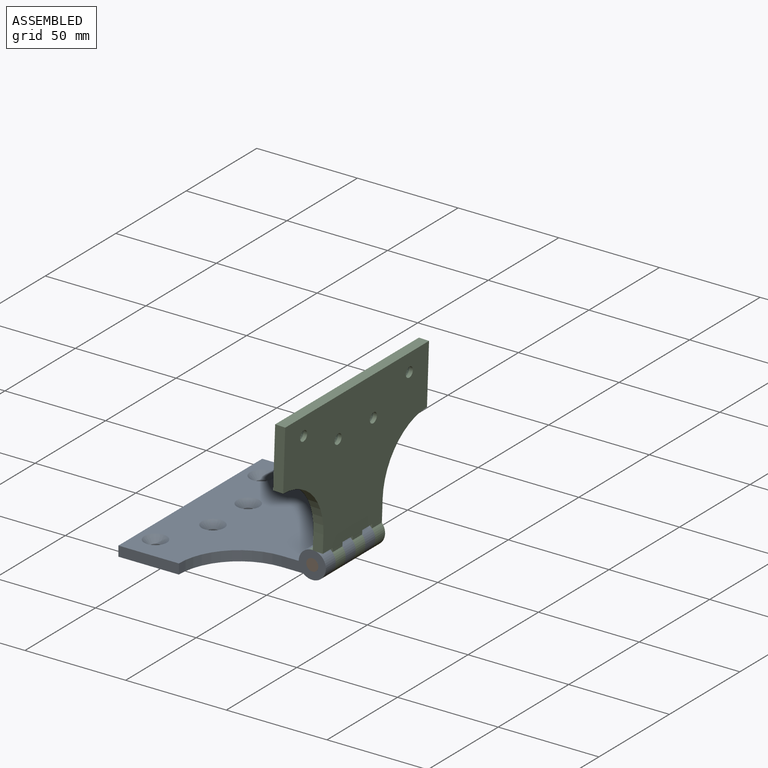
[diagram: assembled view]
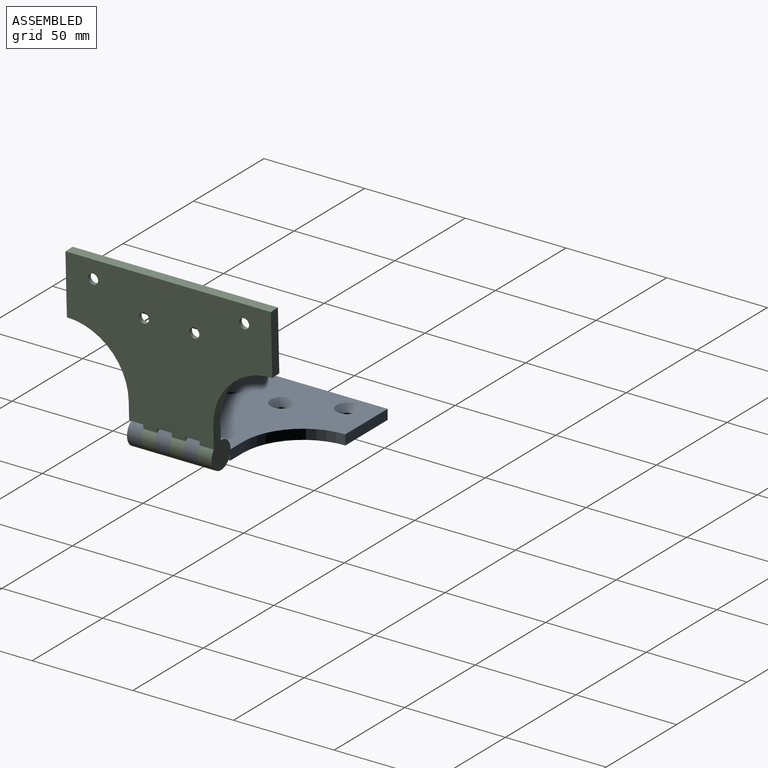
[diagram: assembled view, second angle]
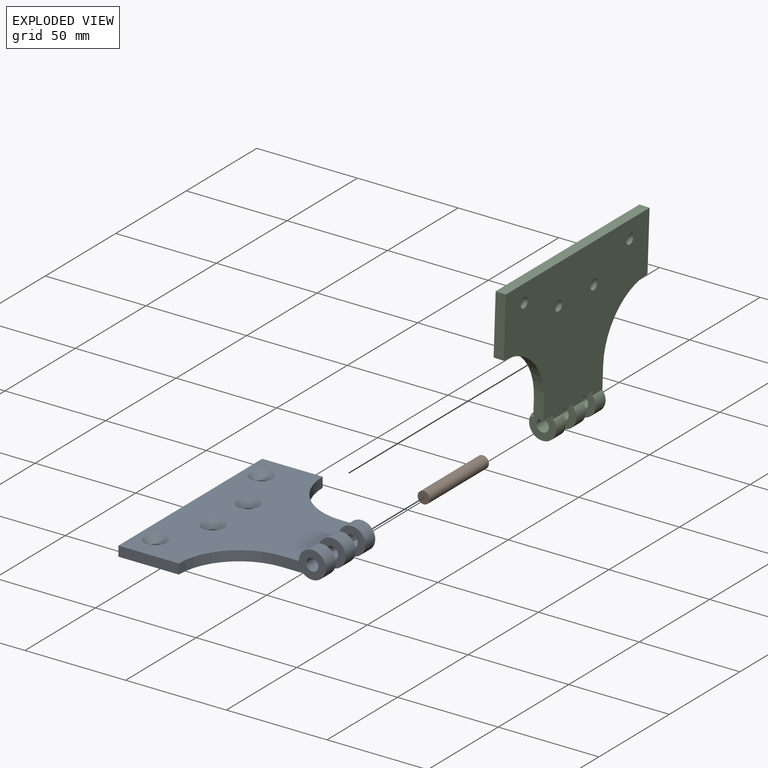
[diagram: exploded view]
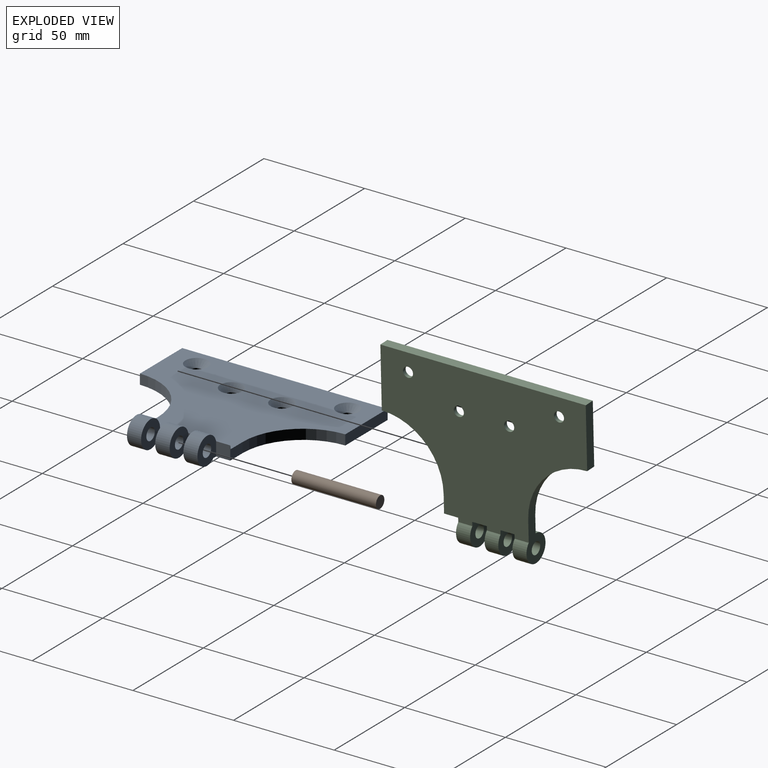
[diagram: exploded view, second angle]
ASSEMBLY  parts=3 mates=2
PART A: 30 faces, bbox 82x102x13.5 mm
  f0: plane 8.77x6.82mm, normal (0,1,0), area 44.2mm2, adj f1,f2,f8,f11,f24
  f1: plane 102x70.74mm, normal (0,0,-1), area 5036.1mm2, adj f0,f2,f3,f5,f6,f7,f8,f9
  f2: cylinder r=6.75mm len=28mm, axis (0,-1,0), area 547.2mm2, adj f0,f1,f11,f20,f21,f22,f24,f25
  f3: cylinder r=6.75mm len=13.5mm, axis (0,-1,0), area 257.5mm2, adj f1,f7,f11,f28
  f4: cylinder r=3mm len=7mm, axis (0,-1,0), area 131.9mm2, adj f7,f28
  f5: plane 30x5mm, normal (0,-1,0), area 150mm2, adj f1,f6,f10,f11
  f6: cylinder r=30mm len=30mm, axis (0,0,-1), area 235.6mm2, adj f1,f5,f7,f11
  f7: plane 22.02x13.5mm, normal (0,-1,0), area 160.9mm2, adj f1,f3,f4,f6,f11
  f8: cylinder r=30mm len=30mm, axis (0,0,-1), area 235.6mm2, adj f0,f1,f9,f11
  f9: plane 30x5mm, normal (0,1,0), area 150mm2, adj f1,f8,f10,f11
  f10: plane 102x5mm, normal (-1,0,0), area 510mm2, adj f1,f5,f9,f11
  f11: plane 102x68.52mm, normal (0,0,1), area 4670.1mm2, adj f0,f2,f3,f5,f6,f7,f8,f9
  f12: cylinder r=2.5mm len=5mm, axis (0,0,1), area 29.8mm2, adj f1,f13
  f13: cone r=2.5mm half-angle=45deg, axis (0,0,1), area 111.6mm2, adj f11,f12
  f14: cylinder r=2.5mm len=5mm, axis (0,0,1), area 29.8mm2, adj f1,f15
  f15: cone r=2.5mm half-angle=45deg, axis (0,0,1), area 111.6mm2, adj f11,f14
  f16: cylinder r=2.5mm len=5mm, axis (0,0,1), area 29.8mm2, adj f1,f17
  f17: cone r=2.5mm half-angle=45deg, axis (0,0,1), area 111.6mm2, adj f11,f16
  f18: cylinder r=2.5mm len=5mm, axis (0,0,1), area 29.8mm2, adj f1,f19
  f19: cone r=2.5mm half-angle=45deg, axis (0,0,1), area 111.6mm2, adj f11,f18
  f20: plane 6.82x6.82mm, normal (1,0,0), area 46.5mm2, adj f1,f2,f21,f22
  f21: plane 13.5x13.25mm, normal (0,1,0), area 116.7mm2, adj f1,f2,f20,f23
  f22: plane 13.5x13.25mm, normal (0,-1,0), area 116.7mm2, adj f1,f2,f20,f29
  f23: cylinder r=3mm len=7.18mm, axis (0,-1,0), area 135.4mm2, adj f21,f27
  f24: plane 7x6.82mm, normal (1,0,0), area 47.7mm2, adj f0,f1,f2,f25
  f25: plane 13.5x13.25mm, normal (0,1,0), area 116.7mm2, adj f1,f2,f24,f29
  f26: plane 7x5mm, normal (1,0,0), area 35mm2, adj f1,f11,f27,f28
  f27: plane 13.5x13.5mm, normal (0,-1,0), area 118.3mm2, adj f1,f2,f23,f26
  f28: plane 13.5x13.5mm, normal (0,1,0), area 118.3mm2, adj f1,f3,f4,f26
  f29: cylinder r=3mm len=7mm, axis (0,-1,0), area 131.9mm2, adj f22,f25
PART B: 3 faces, bbox 6x42x6 mm
  f0: plane 6x6mm, normal (0,1,0), area 28.3mm2, adj f2
  f1: plane 6x6mm, normal (0,-1,0), area 28.3mm2, adj f2
  f2: cylinder r=3mm len=42mm, axis (0,-1,0), area 791.7mm2, adj f0,f1
PART C: 29 faces, bbox 82x102x13.5 mm
  f0: plane 8.77x6.82mm, normal (0,-1,0), area 44.2mm2, adj f1,f2,f5,f10,f25
  f1: plane 102x70.74mm, normal (0,0,-1), area 5037.1mm2, adj f0,f2,f4,f5,f6,f7,f8,f9
  f2: cylinder r=6.75mm len=42mm, axis (0,-1,0), area 804.7mm2, adj f0,f1,f6,f10,f19,f20,f21,f22
  f3: cylinder r=3mm len=7mm, axis (0,-1,0), area 131.9mm2, adj f6,f20
  f4: plane 30x5mm, normal (0,-1,0), area 150mm2, adj f1,f5,f9,f10
  f5: cylinder r=30mm len=30mm, axis (0,0,-1), area 235.6mm2, adj f0,f1,f4,f10
  f6: plane 22.02x13.5mm, normal (0,1,0), area 160.9mm2, adj f1,f2,f3,f7,f10
  f7: cylinder r=30mm len=30mm, axis (0,0,-1), area 235.6mm2, adj f1,f6,f8,f10
  f8: plane 30x5mm, normal (0,1,0), area 150mm2, adj f1,f7,f9,f10
  f9: plane 102x5mm, normal (1,0,0), area 510mm2, adj f1,f4,f8,f10
  f10: plane 102x68.52mm, normal (0,0,1), area 4670.1mm2, adj f0,f2,f4,f5,f6,f7,f8,f9
  f11: cylinder r=2.5mm len=5mm, axis (0,0,1), area 29.8mm2, adj f1,f12
  f12: cone r=2.5mm half-angle=45deg, axis (0,0,1), area 111.6mm2, adj f10,f11
  f13: cylinder r=2.5mm len=5mm, axis (0,0,1), area 29.8mm2, adj f1,f14
  f14: cone r=2.5mm half-angle=45deg, axis (0,0,1), area 111.6mm2, adj f10,f13
  f15: cylinder r=2.5mm len=5mm, axis (0,0,1), area 29.8mm2, adj f1,f16
  f16: cone r=2.5mm half-angle=45deg, axis (0,0,1), area 111.6mm2, adj f10,f15
  f17: cylinder r=2.5mm len=5mm, axis (0,0,1), area 29.8mm2, adj f1,f18
  f18: cone r=2.5mm half-angle=45deg, axis (0,0,1), area 111.6mm2, adj f10,f17
  f19: plane 7x6.82mm, normal (-1,0,0), area 47.7mm2, adj f1,f2,f20,f21
  f20: plane 13.5x13.25mm, normal (0,-1,0), area 116.7mm2, adj f1,f2,f3,f19
  f21: plane 13.5x13.25mm, normal (0,1,0), area 116.7mm2, adj f1,f2,f19,f27
  f22: plane 7.18x6.82mm, normal (-1,0,0), area 49mm2, adj f1,f2,f23,f24
  f23: plane 13.5x13.25mm, normal (0,-1,0), area 116.7mm2, adj f1,f2,f22,f27
  f24: plane 13.5x13.25mm, normal (0,1,0), area 116.7mm2, adj f1,f2,f22,f28
  f25: plane 7x6.82mm, normal (-1,0,0), area 47.7mm2, adj f0,f1,f2,f26
  f26: plane 13.5x13.25mm, normal (0,-1,0), area 116.7mm2, adj f1,f2,f25,f28
  f27: cylinder r=3mm len=6.82mm, axis (0,-1,0), area 128.5mm2, adj f21,f23
  f28: cylinder r=3mm len=7mm, axis (0,-1,0), area 131.9mm2, adj f24,f26
PLACE A t=(59.68,39.74,16.71)mm
PLACE B rot(axis=(0,1,0),11deg) t=(59.2,39.74,16.76)mm
PLACE C rot(axis=(0,-1,0),88deg) t=(62.18,39.74,19.12)mm
MATE revolute B.f2 <-> A.f2  axis (0,-1,0) through (59.68,18.56,19.21)mm
MATE revolute A.f2 <-> C.f2  axis (0,1,0) through (59.68,60.56,19.21)mm
